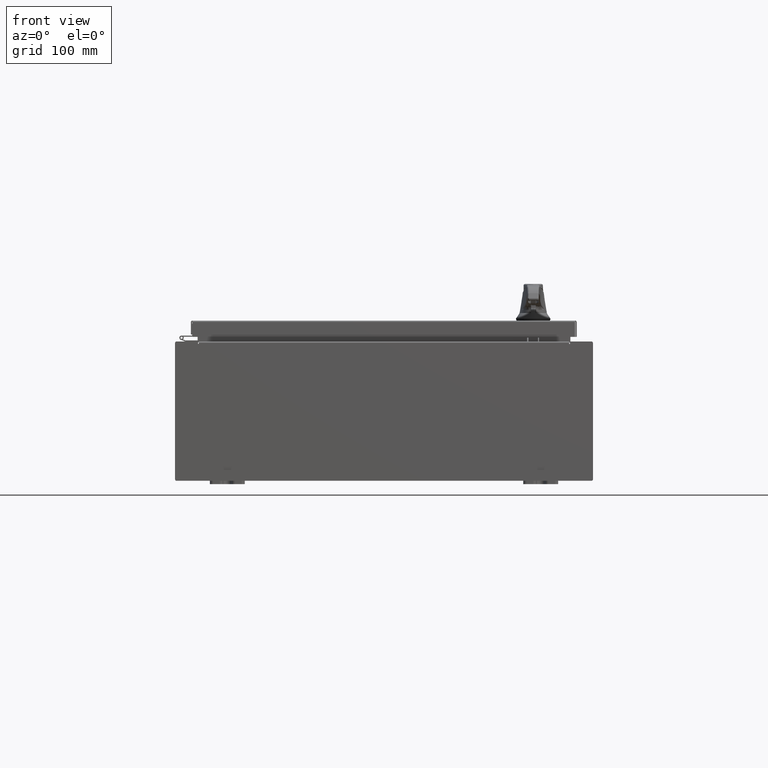
[diagram: clean part render]
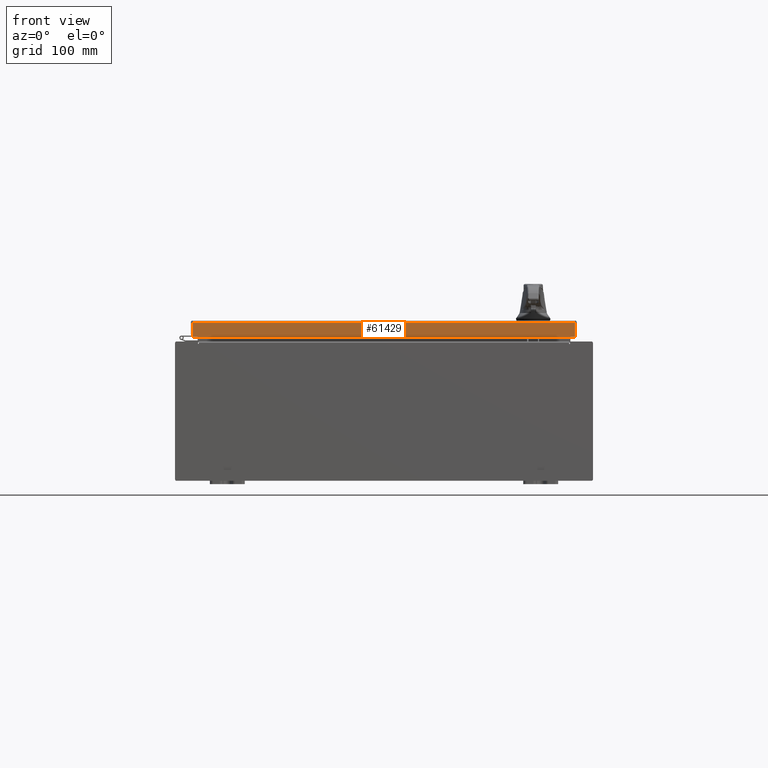
[diagram: same view with one face highlighted and labeled with its STEP entity id]
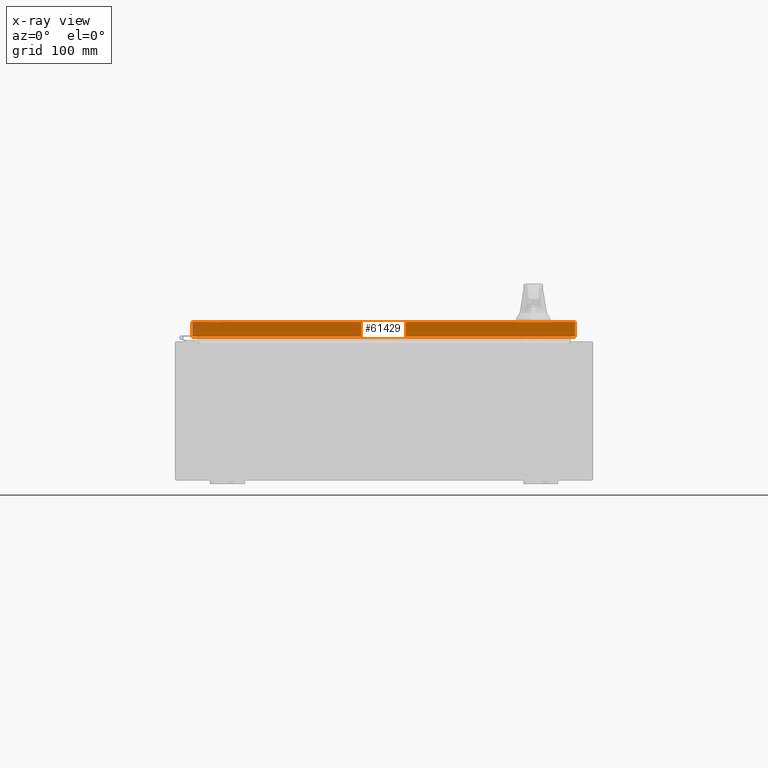
[diagram: x-ray of the same camera — body ghosted, the highlighted face saturated]
A machine part, front view. The second image highlights one B-rep face of the part: STEP entity #61429.
The next image is the same camera in x-ray: the body ghosted, the highlighted face saturated — about 0% of this face is hidden behind the body in this view.
In plain terms, the highlighted planar face has unit normal (0, 1, -0).
Its self-contained STEP definition (entity closure, byte-faithful):
#1422 = EDGE_CURVE ( 'NONE', #34681, #52523, #99579, .T. ) ;
#2891 = EDGE_CURVE ( 'NONE', #52523, #8951, #10671, .T. ) ;
#4086 = LINE ( 'NONE', #77353, #74171 ) ;
#4376 = CARTESIAN_POINT ( 'NONE',  ( -10.98915786437626900, -14.09399999999999900, 3.595274007335028100E-014 ) ) ;
#5576 = EDGE_LOOP ( 'NONE', ( #110752, #80835, #60025, #94646 ) ) ;
#8951 = VERTEX_POINT ( 'NONE', #109310 ) ;
#10671 = LINE ( 'NONE', #55432, #32088 ) ;
#13442 = DIRECTION ( 'NONE',  ( 1.000000000000000000, -9.864047639156004100E-017, -7.444398091725593800E-046 ) ) ;
#15198 = EDGE_CURVE ( 'NONE', #78755, #34681, #4086, .T. ) ;
#18559 = CARTESIAN_POINT ( 'NONE',  ( -1.390238874262646700E-015, -14.09399999999999900, 3.595274007335028100E-014 ) ) ;
#28536 = VECTOR ( 'NONE', #49884, 39.37007874015748100 ) ;
#29683 = CARTESIAN_POINT ( 'NONE',  ( 10.98915786437626900, -14.09400000000000100, -0.07469999999999980800 ) ) ;
#32010 = DIRECTION ( 'NONE',  ( 0.0000000000000000000, -2.532419924601866100E-015, -1.000000000000000000 ) ) ;
#32088 = VECTOR ( 'NONE', #57756, 39.37007874015748100 ) ;
#34681 = VERTEX_POINT ( 'NONE', #60430 ) ;
#37709 = FACE_OUTER_BOUND ( 'NONE', #5576, .T. ) ;
#47996 = DIRECTION ( 'NONE',  ( 9.864047639156001700E-017, 1.000000000000000000, -2.532419924601866100E-015 ) ) ;
#49884 = DIRECTION ( 'NONE',  ( 0.0000000000000000000, -2.532419924601866100E-015, -1.000000000000000000 ) ) ;
#50861 = VECTOR ( 'NONE', #32010, 39.37007874015748100 ) ;
#52523 = VERTEX_POINT ( 'NONE', #108850 ) ;
#55432 = CARTESIAN_POINT ( 'NONE',  ( 11.07799999999999900, -14.09400000000000300, -0.9376999999999997600 ) ) ;
#57756 = DIRECTION ( 'NONE',  ( -1.000000000000000000, 9.864047639156033700E-017, 1.233005954894504400E-016 ) ) ;
#60025 = ORIENTED_EDGE ( 'NONE', *, *, #2891, .F. ) ;
#60430 = CARTESIAN_POINT ( 'NONE',  ( 10.98915786437624400, -14.09400000000000100, -0.08770000000000226200 ) ) ;
#61429 = ADVANCED_FACE ( 'NONE', ( #37709 ), #102853, .F. ) ;
#72940 = CARTESIAN_POINT ( 'NONE',  ( -10.98915786437626700, -14.09399999999999900, -0.08770000000000226200 ) ) ;
#74171 = VECTOR ( 'NONE', #13442, 39.37007874015748100 ) ;
#77353 = CARTESIAN_POINT ( 'NONE',  ( 11.07799999999999900, -14.09400000000000100, -0.08770000000000226200 ) ) ;
#77600 = EDGE_CURVE ( 'NONE', #78755, #8951, #98624, .T. ) ;
#78755 = VERTEX_POINT ( 'NONE', #72940 ) ;
#80835 = ORIENTED_EDGE ( 'NONE', *, *, #77600, .T. ) ;
#87822 = AXIS2_PLACEMENT_3D ( 'NONE', #18559, #47996, #112078 ) ;
#94646 = ORIENTED_EDGE ( 'NONE', *, *, #1422, .F. ) ;
#98624 = LINE ( 'NONE', #4376, #28536 ) ;
#99579 = LINE ( 'NONE', #29683, #50861 ) ;
#102853 = PLANE ( 'NONE',  #87822 ) ;
#108850 = CARTESIAN_POINT ( 'NONE',  ( 10.98915786437626900, -14.09400000000000300, -0.9376999999999997600 ) ) ;
#109310 = CARTESIAN_POINT ( 'NONE',  ( -10.98915786437626700, -14.09400000000000100, -0.9376999999999970900 ) ) ;
#110752 = ORIENTED_EDGE ( 'NONE', *, *, #15198, .F. ) ;
#112078 = DIRECTION ( 'NONE',  ( 0.0000000000000000000, 2.532419924601866100E-015, 1.000000000000000000 ) ) ;